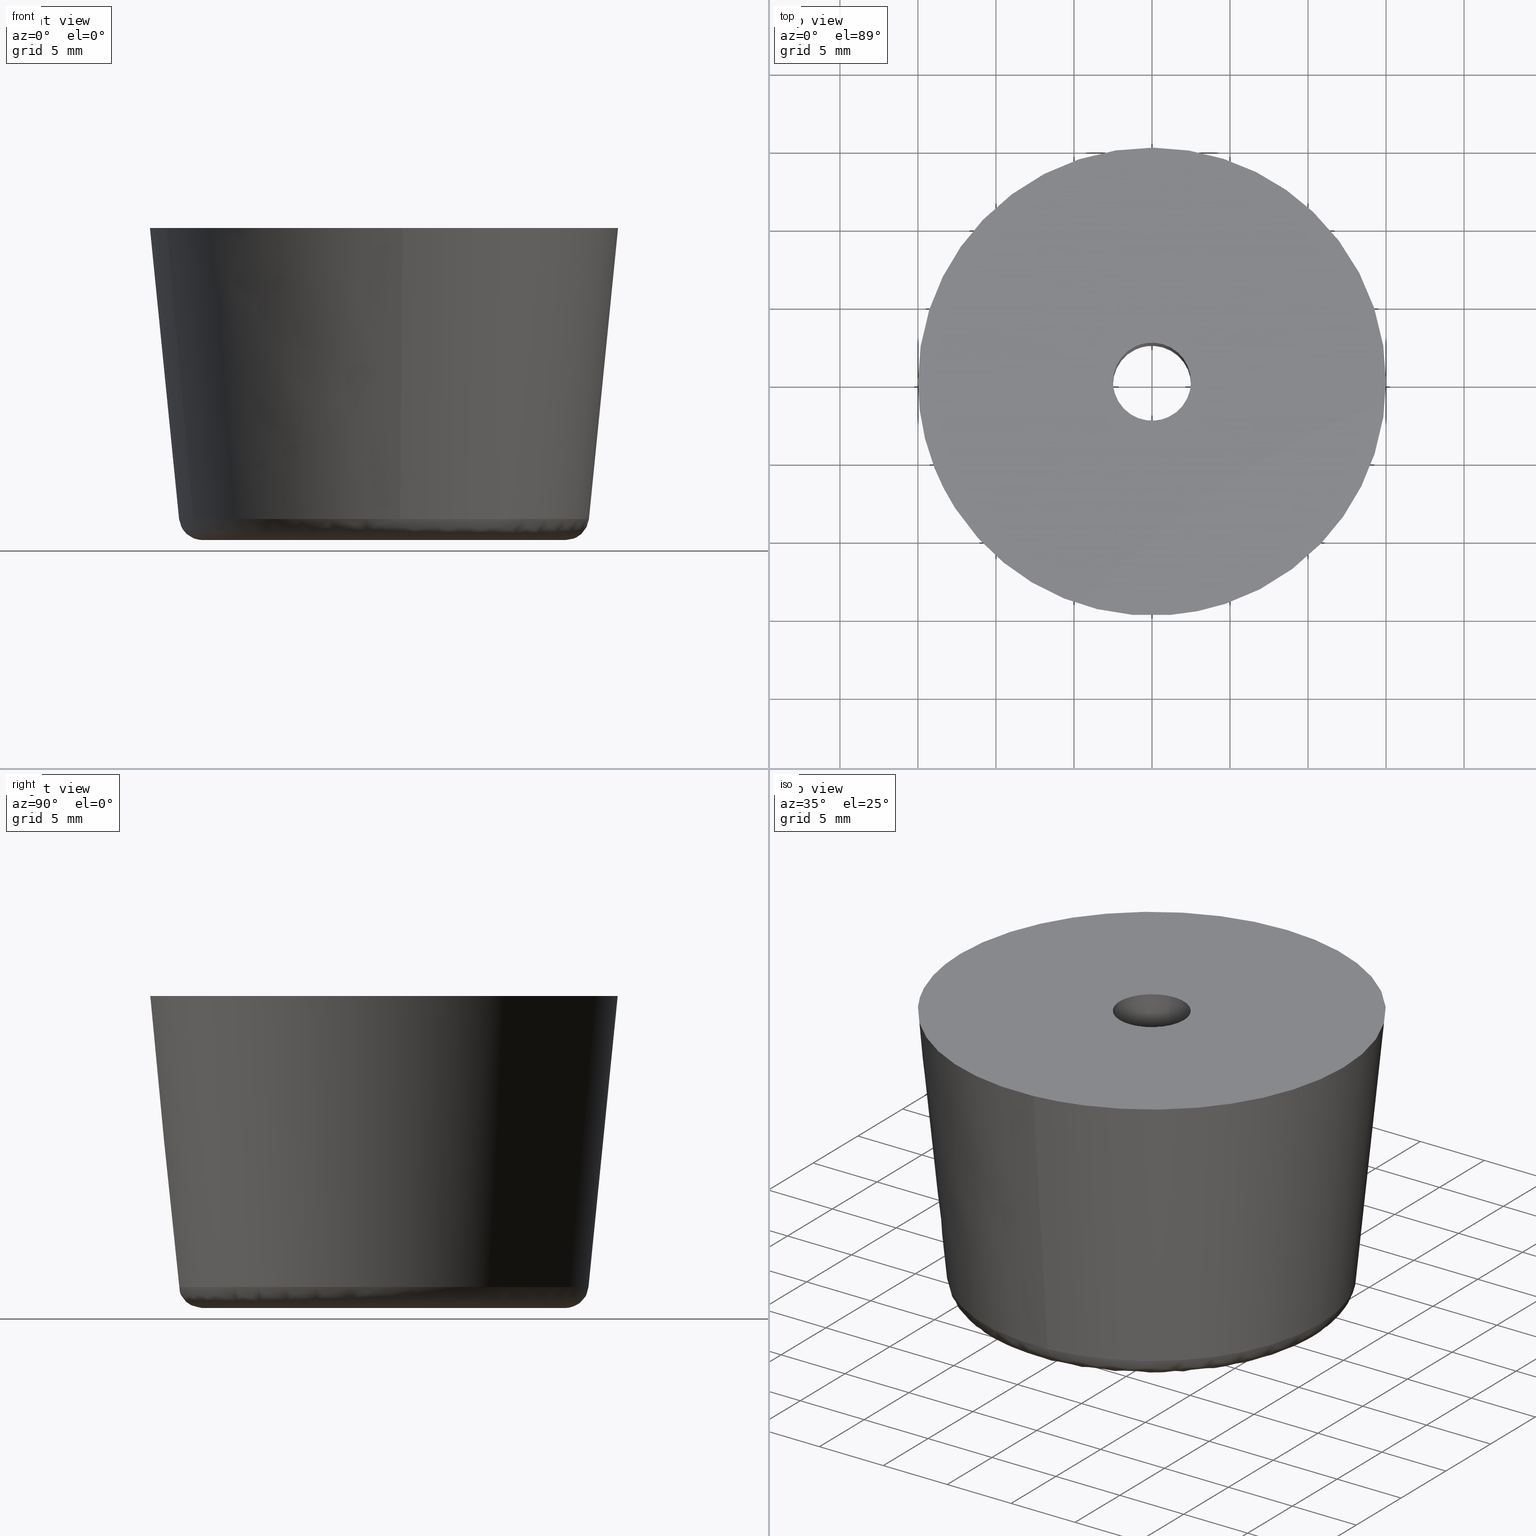
[diagram: canonical four-view strip — front | top / right | iso, engineering-drawing reading convention]
A machine part, canonical four-view strip (front | top / right | iso — engineering-drawing reading convention). The complete STEP part file that produces these views, byte-faithful:
ISO-10303-21;
HEADER;
/****************************************************************
 * Generated by software with PDE/Lib inside                    *
 * PDElib Version 4.4.1-0003, patched  Thursday August 19 11:58 *
 * International Technegroup Inc. (www.iti-oh.com)              *
 ****************************************************************/
FILE_DESCRIPTION((''),'2;1');
FILE_NAME('','2005-12-14T14:11:03',(''),(''),'','CADfix','');
FILE_SCHEMA(('AUTOMOTIVE_DESIGN'));
ENDSEC;
DATA;
#5=APPLICATION_CONTEXT('automotive design');
#6=APPLICATION_PROTOCOL_DEFINITION('Draft International Standard','automotive_design',1998,#5);
#7=PRODUCT_CONTEXT('None',#5,'mechanical');
#8=PRODUCT('rubber foot','','None',(#7));
#9=PRODUCT_RELATED_PRODUCT_CATEGORY('part','description',(#8));
#10=PRODUCT_DEFINITION_FORMATION('None','None',#8);
#11=PRODUCT_DEFINITION_CONTEXT('part definition',#5,'design');
#12=PRODUCT_DEFINITION('None','None',#10,#11);
#18=(NAMED_UNIT(*)PLANE_ANGLE_UNIT()SI_UNIT($,.RADIAN.));
#19=DIMENSIONAL_EXPONENTS(0.0,0.0,0.0,0.0,0.0,0.0,0.0);
#20=PLANE_ANGLE_MEASURE_WITH_UNIT(PLANE_ANGLE_MEASURE(0.017453292500000),#18);
#24=(CONVERSION_BASED_UNIT('DEGREE',#20)NAMED_UNIT(#19)PLANE_ANGLE_UNIT());
#28=(NAMED_UNIT(*)SI_UNIT($,.STERADIAN.)SOLID_ANGLE_UNIT());
#32=(LENGTH_UNIT()NAMED_UNIT(*)SI_UNIT(.MILLI.,.METRE.));
#34=UNCERTAINTY_MEASURE_WITH_UNIT(LENGTH_MEASURE(0.001000000000000),#32,'DISTANCE_ACCURACY_VALUE','');
#36=(GEOMETRIC_REPRESENTATION_CONTEXT(3)GLOBAL_UNCERTAINTY_ASSIGNED_CONTEXT((#34))GLOBAL_UNIT_ASSIGNED_CONTEXT((#24,#28,#32))REPRESENTATION_CONTEXT('None','None'));
#37=AXIS2_PLACEMENT_3D('',#38,#39,#40);
#38=CARTESIAN_POINT('',(0.0,0.0,0.0));
#39=DIRECTION('',(0.0,0.0,1.0));
#40=DIRECTION('',(1.0,0.0,0.0));
#41=ADVANCED_BREP_SHAPE_REPRESENTATION('',(#37,#841),#36);
#42=PRODUCT_DEFINITION_SHAPE('','',#12);
#43=SHAPE_DEFINITION_REPRESENTATION(#42,#41);
#44=CARTESIAN_POINT('',(-12.170484751415133,-4.815272209996599,0.884513582186998));
#45=CARTESIAN_POINT('',(-8.612980301674860,-13.806779184154966,0.884513582186998));
#46=CARTESIAN_POINT('',(1.026908017833442,-13.048103519810960,0.884513582186998));
#47=CARTESIAN_POINT('',(-13.992403335263864,-5.536117279430917,20.477887160445327));
#48=CARTESIAN_POINT('',(-9.902341341474021,-15.873650643468268,20.477887160445327));
#49=CARTESIAN_POINT('',(1.180635896369789,-15.001401418151570,20.477887160445331));
#57=(BOUNDED_SURFACE()B_SPLINE_SURFACE(2,1,((#44,#47),(#45,#48),(#46,#49)),.UNSPECIFIED.,.F.,.F.,.U.)B_SPLINE_SURFACE_WITH_KNOTS((3,3),(2,2),(0.0,19.809642269419701),(0.0,19.691096798235819),.UNSPECIFIED.)GEOMETRIC_REPRESENTATION_ITEM()RATIONAL_B_SPLINE_SURFACE(((0.906274169979695,0.906274169979695),(0.765685424949238,0.765685424949238),(1.0,1.0)))REPRESENTATION_ITEM('')SURFACE());
#58=CARTESIAN_POINT('',(1.030555621959290,-13.094583491800741,1.350742231963600));
#59=VERTEX_POINT('',#58);
#60=CARTESIAN_POINT('',(-12.213839723886680,-4.832419833118689,1.350742433918875));
#61=VERTEX_POINT('',#60);
#62=CARTESIAN_POINT('',(1.030555621959290,-13.094583491800739,1.350742231963600));
#63=CARTESIAN_POINT('',(0.516073231781699,-13.135073728872834,1.350742237333666));
#64=CARTESIAN_POINT('',(-7.493435E-009,-13.135073733965189,1.350742242998451));
#65=CARTESIAN_POINT('',(-8.928885143544781,-13.135073822070973,1.350742341008227));
#66=CARTESIAN_POINT('',(-12.213839723886680,-4.832419833118689,1.350742433918874));
#74=(BOUNDED_CURVE()B_SPLINE_CURVE(2,(#62,#63,#64,#65,#66),.UNSPECIFIED.,.F.,.U.)B_SPLINE_CURVE_WITH_KNOTS((3,2,3),(0.736331436581265,0.750000000000000,0.937532615029448),.UNSPECIFIED.)CURVE()GEOMETRIC_REPRESENTATION_ITEM()RATIONAL_B_SPLINE_CURVE((0.969723639886132,0.983986281854923,1.0,0.780291875006084,0.890203263798775))REPRESENTATION_ITEM(''));
#75=EDGE_CURVE('',#59,#61,#74,.T.);
#76=ORIENTED_EDGE('',*,*,#75,.F.);
#77=CARTESIAN_POINT('',(1.176877817785791,-14.953760451905559,19.999997683682370));
#78=VERTEX_POINT('',#77);
#79=CARTESIAN_POINT('',(1.030555621959290,-13.094583491800741,1.350742231963600));
#80=CARTESIAN_POINT('',(1.176877817785791,-14.953760451905559,19.999997683682370));
#81=QUASI_UNIFORM_CURVE('',1,(#79,#80),.UNSPECIFIED.,.F.,.U.);
#82=EDGE_CURVE('',#59,#78,#81,.T.);
#83=ORIENTED_EDGE('',*,*,#82,.T.);
#84=CARTESIAN_POINT('',(-13.947968010895551,-5.518530671019443,19.999997466659359));
#85=VERTEX_POINT('',#84);
#86=CARTESIAN_POINT('',(1.176877817785791,-14.953760451905552,19.999997683682377));
#87=CARTESIAN_POINT('',(0.589347273754645,-14.999999772741710,19.999997677911637));
#88=CARTESIAN_POINT('',(-4.309222E-009,-14.999999776604669,19.999997671824179));
#89=CARTESIAN_POINT('',(-10.196613181655882,-14.999999843439703,19.999997566501975));
#90=CARTESIAN_POINT('',(-13.947968010895554,-5.518530671019443,19.999997466659359));
#98=(BOUNDED_CURVE()B_SPLINE_CURVE(2,(#86,#87,#88,#89,#90),.UNSPECIFIED.,.F.,.U.)B_SPLINE_CURVE_WITH_KNOTS((3,2,3),(0.736331399219582,0.750000000000000,0.937532605541042),.UNSPECIFIED.)CURVE()GEOMETRIC_REPRESENTATION_ITEM()RATIONAL_B_SPLINE_CURVE((0.969723561915069,0.983986238082989,1.0,0.780291886122443,0.890203252676616))REPRESENTATION_ITEM(''));
#99=EDGE_CURVE('',#78,#85,#98,.T.);
#100=ORIENTED_EDGE('',*,*,#99,.T.);
#101=CARTESIAN_POINT('',(-12.213839723886680,-4.832419833118689,1.350742433918875));
#102=CARTESIAN_POINT('',(-13.947968010895551,-5.518530671019443,19.999997466659359));
#103=QUASI_UNIFORM_CURVE('',1,(#101,#102),.UNSPECIFIED.,.F.,.U.);
#104=EDGE_CURVE('',#61,#85,#103,.T.);
#105=ORIENTED_EDGE('',*,*,#104,.F.);
#106=EDGE_LOOP('',(#76,#83,#100,#105));
#107=FACE_OUTER_BOUND('',#106,.T.);
#108=ADVANCED_FACE('',(#107),#57,.T.);
#109=CARTESIAN_POINT('',(1.026908017833442,-13.048103519810960,0.884513582186998));
#110=CARTESIAN_POINT('',(14.075011537644400,-12.021195501977516,0.884513582186999));
#111=CARTESIAN_POINT('',(13.048103519810960,1.026908017833442,0.884513582186998));
#112=CARTESIAN_POINT('',(12.021195501977516,14.075011537644400,0.884513582186999));
#113=CARTESIAN_POINT('',(-1.026908017833442,13.048103519810960,0.884513582186998));
#114=CARTESIAN_POINT('',(-14.075011537644400,12.021195501977516,0.884513582186999));
#115=CARTESIAN_POINT('',(-13.048103519810960,-1.026908017833442,0.884513582186998));
#116=CARTESIAN_POINT('',(-12.893840262821103,-2.987008544415640,0.884513582186998));
#117=CARTESIAN_POINT('',(-12.170484751415133,-4.815272209996599,0.884513582186998));
#118=CARTESIAN_POINT('',(1.180635896369789,-15.001401418151570,20.477887160445331));
#119=CARTESIAN_POINT('',(16.182037314521356,-13.820765521781778,20.477887160445334));
#120=CARTESIAN_POINT('',(15.001401418151570,1.180635896369789,20.477887160445331));
#121=CARTESIAN_POINT('',(13.820765521781778,16.182037314521356,20.477887160445334));
#122=CARTESIAN_POINT('',(-1.180635896369789,15.001401418151570,20.477887160445331));
#123=CARTESIAN_POINT('',(-16.182037314521356,13.820765521781778,20.477887160445334));
#124=CARTESIAN_POINT('',(-15.001401418151570,-1.180635896369789,20.477887160445331));
#125=CARTESIAN_POINT('',(-14.824044989405989,-3.434162991287858,20.477887160445327));
#126=CARTESIAN_POINT('',(-13.992403335263864,-5.536117279430917,20.477887160445327));
#134=(BOUNDED_SURFACE()B_SPLINE_SURFACE(2,1,((#109,#118),(#110,#119),(#111,#120),(#112,#121),(#113,#122),(#114,#123),(#115,#124),(#116,#125),(#117,#126)),.UNSPECIFIED.,.F.,.F.,.U.)B_SPLINE_SURFACE_WITH_KNOTS((3,2,2,2,3),(2,2),(0.0,24.931992700870310,49.863985401740621,74.795978102610931,79.782376642784996),(0.0,19.691096798235819),.UNSPECIFIED.)GEOMETRIC_REPRESENTATION_ITEM()RATIONAL_B_SPLINE_SURFACE(((1.0,1.0),(0.707106781186548,0.707106781186548),(1.0,1.0),(0.707106781186548,0.707106781186548),(1.0,1.0),(0.707106781186548,0.707106781186548),(1.0,1.0),(0.941421356237310,0.941421356237310),(0.906274169979695,0.906274169979695)))REPRESENTATION_ITEM('')SURFACE());
#135=CARTESIAN_POINT('',(-13.135073999999980,0.0,1.350745000000000));
#136=VERTEX_POINT('',#135);
#137=CARTESIAN_POINT('',(-12.213839723886680,-4.832419833118689,1.350742433918874));
#138=CARTESIAN_POINT('',(-13.135073880694025,-2.504020181869384,1.350743716959438));
#139=CARTESIAN_POINT('',(-13.135073999999980,0.0,1.350745000000000));
#147=(BOUNDED_CURVE()B_SPLINE_CURVE(2,(#137,#138,#139),.UNSPECIFIED.,.F.,.U.)B_SPLINE_CURVE_WITH_KNOTS((3,3),(0.937532615029448,1.0),.UNSPECIFIED.)CURVE()GEOMETRIC_REPRESENTATION_ITEM()RATIONAL_B_SPLINE_CURVE((0.890203263798775,0.926814906180464,1.0))REPRESENTATION_ITEM(''));
#148=EDGE_CURVE('',#61,#136,#147,.T.);
#149=ORIENTED_EDGE('',*,*,#148,.F.);
#150=ORIENTED_EDGE('',*,*,#104,.T.);
#151=CARTESIAN_POINT('',(-15.0,0.0,20.0));
#152=VERTEX_POINT('',#151);
#153=CARTESIAN_POINT('',(-13.947968010895554,-5.518530671019443,19.999997466659359));
#154=CARTESIAN_POINT('',(-14.999999882216349,-2.859543005213578,19.999998733329683));
#155=CARTESIAN_POINT('',(-15.0,0.0,20.0));
#163=(BOUNDED_CURVE()B_SPLINE_CURVE(2,(#153,#154,#155),.UNSPECIFIED.,.F.,.U.)B_SPLINE_CURVE_WITH_KNOTS((3,3),(0.937532605541042,1.0),.UNSPECIFIED.)CURVE()GEOMETRIC_REPRESENTATION_ITEM()RATIONAL_B_SPLINE_CURVE((0.890203252676616,0.926814895064105,1.0))REPRESENTATION_ITEM(''));
#164=EDGE_CURVE('',#85,#152,#163,.T.);
#165=ORIENTED_EDGE('',*,*,#164,.T.);
#166=CARTESIAN_POINT('',(15.0,0.0,20.0));
#167=VERTEX_POINT('',#166);
#168=CARTESIAN_POINT('',(-15.0,0.0,20.0));
#169=CARTESIAN_POINT('',(-14.999999999999996,14.999999999999996,20.0));
#170=CARTESIAN_POINT('',(0.0,15.0,20.0));
#171=CARTESIAN_POINT('',(14.999999999999996,14.999999999999996,20.0));
#172=CARTESIAN_POINT('',(15.0,0.0,20.0));
#180=(BOUNDED_CURVE()B_SPLINE_CURVE(2,(#168,#169,#170,#171,#172),.UNSPECIFIED.,.F.,.U.)B_SPLINE_CURVE_WITH_KNOTS((3,2,3),(0.0,0.250000000000000,0.500000000000000),.UNSPECIFIED.)CURVE()GEOMETRIC_REPRESENTATION_ITEM()RATIONAL_B_SPLINE_CURVE((1.0,0.707106781186547,1.0,0.707106781186547,1.0))REPRESENTATION_ITEM(''));
#181=EDGE_CURVE('',#152,#167,#180,.T.);
#182=ORIENTED_EDGE('',*,*,#181,.T.);
#183=CARTESIAN_POINT('',(15.0,0.0,20.0));
#184=CARTESIAN_POINT('',(14.999999990913157,-13.865865258374738,19.999998841841183));
#185=CARTESIAN_POINT('',(1.176877817785791,-14.953760451905552,19.999997683682377));
#193=(BOUNDED_CURVE()B_SPLINE_CURVE(2,(#183,#184,#185),.UNSPECIFIED.,.F.,.U.)B_SPLINE_CURVE_WITH_KNOTS((3,3),(0.500000000000000,0.736331399219582),.UNSPECIFIED.)CURVE()GEOMETRIC_REPRESENTATION_ITEM()RATIONAL_B_SPLINE_CURVE((1.0,0.723120543103558,0.969723561915069))REPRESENTATION_ITEM(''));
#194=EDGE_CURVE('',#167,#78,#193,.T.);
#195=ORIENTED_EDGE('',*,*,#194,.T.);
#196=ORIENTED_EDGE('',*,*,#82,.F.);
#197=CARTESIAN_POINT('',(13.135073999999980,0.0,1.350745000000000));
#198=VERTEX_POINT('',#197);
#199=CARTESIAN_POINT('',(13.135073999999980,0.0,1.350745000000000));
#200=CARTESIAN_POINT('',(13.135073989141043,-12.141947033812311,1.350743615981800));
#201=CARTESIAN_POINT('',(1.030555621959290,-13.094583491800739,1.350742231963600));
#209=(BOUNDED_CURVE()B_SPLINE_CURVE(2,(#199,#200,#201),.UNSPECIFIED.,.F.,.U.)B_SPLINE_CURVE_WITH_KNOTS((3,3),(0.500000000000000,0.736331436581265),.UNSPECIFIED.)CURVE()GEOMETRIC_REPRESENTATION_ITEM()RATIONAL_B_SPLINE_CURVE((1.0,0.723120499331624,0.969723639886132))REPRESENTATION_ITEM(''));
#210=EDGE_CURVE('',#198,#59,#209,.T.);
#211=ORIENTED_EDGE('',*,*,#210,.F.);
#212=CARTESIAN_POINT('',(0.989423196236340,13.097756360902920,1.350744958231219));
#213=VERTEX_POINT('',#212);
#214=CARTESIAN_POINT('',(0.989423196236340,13.097756360902922,1.350744958231218));
#215=CARTESIAN_POINT('',(13.135073999999980,12.180256157799978,1.350745000000000));
#216=CARTESIAN_POINT('',(13.135073999999980,0.0,1.350745000000000));
#224=(BOUNDED_CURVE()B_SPLINE_CURVE(2,(#214,#215,#216),.UNSPECIFIED.,.F.,.U.)B_SPLINE_CURVE_WITH_KNOTS((3,3),(0.263129840737689,0.500000000000000),.UNSPECIFIED.)CURVE()GEOMETRIC_REPRESENTATION_ITEM()RATIONAL_B_SPLINE_CURVE((0.970850634527140,0.722489346451227,1.0))REPRESENTATION_ITEM(''));
#225=EDGE_CURVE('',#213,#198,#224,.T.);
#226=ORIENTED_EDGE('',*,*,#225,.F.);
#227=CARTESIAN_POINT('',(-13.097756360903629,0.989423196243246,1.350744958243485));
#228=VERTEX_POINT('',#227);
#229=CARTESIAN_POINT('',(-13.097756360903636,0.989423196243246,1.350744958243485));
#230=CARTESIAN_POINT('',(-12.180256157787268,13.135073999999980,1.350745000000000));
#231=CARTESIAN_POINT('',(0.0,13.135073999999980,1.350745000000000));
#232=CARTESIAN_POINT('',(0.495415344601110,13.135073999999980,1.350745000000000));
#233=CARTESIAN_POINT('',(0.989423196236340,13.097756360902922,1.350744958231218));
#241=(BOUNDED_CURVE()B_SPLINE_CURVE(2,(#229,#230,#231,#232,#233),.UNSPECIFIED.,.F.,.U.)B_SPLINE_CURVE_WITH_KNOTS((3,2,3),(0.013129840737868,0.250000000000000,0.263129840737689),.UNSPECIFIED.)CURVE()GEOMETRIC_REPRESENTATION_ITEM()RATIONAL_B_SPLINE_CURVE((0.970850634526766,0.722489346451436,1.0,0.984617434735321,0.970850634527140))REPRESENTATION_ITEM(''));
#242=EDGE_CURVE('',#228,#213,#241,.T.);
#243=ORIENTED_EDGE('',*,*,#242,.F.);
#244=CARTESIAN_POINT('',(-13.135073999999980,0.0,1.350745000000000));
#245=CARTESIAN_POINT('',(-13.135073999999978,0.495415344607953,1.350745000000001));
#246=CARTESIAN_POINT('',(-13.097756360903636,0.989423196243246,1.350744958243485));
#254=(BOUNDED_CURVE()B_SPLINE_CURVE(2,(#244,#245,#246),.UNSPECIFIED.,.F.,.U.)B_SPLINE_CURVE_WITH_KNOTS((3,3),(0.0,0.013129840737868),.UNSPECIFIED.)CURVE()GEOMETRIC_REPRESENTATION_ITEM()RATIONAL_B_SPLINE_CURVE((1.0,0.984617434735112,0.970850634526766))REPRESENTATION_ITEM(''));
#255=EDGE_CURVE('',#136,#228,#254,.T.);
#256=ORIENTED_EDGE('',*,*,#255,.F.);
#257=EDGE_LOOP('',(#149,#150,#165,#182,#195,#196,#211,#226,#243,#256));
#258=FACE_OUTER_BOUND('',#257,.T.);
#259=ADVANCED_FACE('',(#258),#134,.T.);
#260=CARTESIAN_POINT('',(-0.295085586641896,2.482523815909166,20.300000000000008));
#261=CARTESIAN_POINT('',(-0.224036821594944,2.490969038621514,20.300000000000004));
#262=CARTESIAN_POINT('',(-0.152621348837143,2.495336996054667,20.300000000000001));
#263=CARTESIAN_POINT('',(2.342715647217524,2.647958344891809,20.300000000000008));
#264=CARTESIAN_POINT('',(2.495336996054667,0.152621348837143,20.300000000000001));
#265=CARTESIAN_POINT('',(2.647958344891809,-2.342715647217524,20.300000000000008));
#266=CARTESIAN_POINT('',(0.152621348837143,-2.495336996054667,20.300000000000001));
#267=CARTESIAN_POINT('',(-0.295085586641896,2.482523815909166,7.692500000000000));
#268=CARTESIAN_POINT('',(-0.224036821594944,2.490969038621514,7.692499999999999));
#269=CARTESIAN_POINT('',(-0.152621348837143,2.495336996054667,7.692499999999999));
#270=CARTESIAN_POINT('',(2.342715647217524,2.647958344891809,7.692499999999999));
#271=CARTESIAN_POINT('',(2.495336996054667,0.152621348837143,7.692499999999999));
#272=CARTESIAN_POINT('',(2.647958344891809,-2.342715647217524,7.692499999999999));
#273=CARTESIAN_POINT('',(0.152621348837143,-2.495336996054667,7.692499999999999));
#281=(BOUNDED_SURFACE()B_SPLINE_SURFACE(2,1,((#260,#267),(#261,#268),(#262,#269),(#263,#270),(#264,#271),(#265,#272),(#266,#273)),.UNSPECIFIED.,.F.,.F.,.U.)B_SPLINE_SURFACE_WITH_KNOTS((3,2,2,3),(2,2),(0.0,0.165685424949238,4.307821048680188,8.449956672411137),(0.0,12.607500000000011),.UNSPECIFIED.)GEOMETRIC_REPRESENTATION_ITEM()RATIONAL_B_SPLINE_SURFACE(((0.977505800795127,0.977505800795127),(0.988284271247462,0.988284271247462),(1.0,1.0),(0.707106781186548,0.707106781186548),(1.0,1.0),(0.707106781186548,0.707106781186548),(1.0,1.0)))REPRESENTATION_ITEM('')SURFACE());
#282=CARTESIAN_POINT('',(-0.295085586665474,2.482523815906363,20.0));
#283=VERTEX_POINT('',#282);
#284=CARTESIAN_POINT('',(2.500000000000000,0.0,20.0));
#285=VERTEX_POINT('',#284);
#286=CARTESIAN_POINT('',(-0.295085586665474,2.482523815906363,20.000000000000004));
#287=CARTESIAN_POINT('',(-0.148060299153603,2.500000000000000,20.000000000000004));
#288=CARTESIAN_POINT('',(0.0,2.500000000000000,20.0));
#289=CARTESIAN_POINT('',(2.500000000000000,2.500000000000000,19.999999999999996));
#290=CARTESIAN_POINT('',(2.500000000000000,0.0,20.0));
#298=(BOUNDED_CURVE()B_SPLINE_CURVE(2,(#286,#287,#288,#289,#290),.UNSPECIFIED.,.F.,.U.)B_SPLINE_CURVE_WITH_KNOTS((3,2,3),(0.229562473512434,0.250000000000000,0.500000000000000),.UNSPECIFIED.)CURVE()GEOMETRIC_REPRESENTATION_ITEM()RATIONAL_B_SPLINE_CURVE((0.956026754181593,0.976055948329886,1.0,0.707106781186548,1.0))REPRESENTATION_ITEM(''));
#299=EDGE_CURVE('',#283,#285,#298,.T.);
#300=ORIENTED_EDGE('',*,*,#299,.F.);
#301=CARTESIAN_POINT('',(-0.295085586665474,2.482523815906363,8.0));
#302=VERTEX_POINT('',#301);
#303=CARTESIAN_POINT('',(-0.295085586665474,2.482523815906363,20.0));
#304=CARTESIAN_POINT('',(-0.295085586665474,2.482523815906363,8.0));
#305=QUASI_UNIFORM_CURVE('',1,(#303,#304),.UNSPECIFIED.,.F.,.U.);
#306=EDGE_CURVE('',#283,#302,#305,.T.);
#307=ORIENTED_EDGE('',*,*,#306,.T.);
#308=CARTESIAN_POINT('',(2.500000000000000,0.0,8.0));
#309=VERTEX_POINT('',#308);
#310=CARTESIAN_POINT('',(-0.295085586665474,2.482523815906363,8.000000000000002));
#311=CARTESIAN_POINT('',(-0.148060299153603,2.500000000000000,8.0));
#312=CARTESIAN_POINT('',(0.0,2.500000000000000,8.0));
#313=CARTESIAN_POINT('',(2.500000000000000,2.500000000000000,8.0));
#314=CARTESIAN_POINT('',(2.500000000000000,0.0,8.0));
#322=(BOUNDED_CURVE()B_SPLINE_CURVE(2,(#310,#311,#312,#313,#314),.UNSPECIFIED.,.F.,.U.)B_SPLINE_CURVE_WITH_KNOTS((3,2,3),(0.229562473512434,0.250000000000000,0.500000000000000),.UNSPECIFIED.)CURVE()GEOMETRIC_REPRESENTATION_ITEM()RATIONAL_B_SPLINE_CURVE((0.956026754181593,0.976055948329886,1.0,0.707106781186548,1.0))REPRESENTATION_ITEM(''));
#323=EDGE_CURVE('',#302,#309,#322,.T.);
#324=ORIENTED_EDGE('',*,*,#323,.T.);
#325=CARTESIAN_POINT('',(0.152621348888177,-2.495336996051546,8.0));
#326=VERTEX_POINT('',#325);
#327=CARTESIAN_POINT('',(2.500000000000000,0.0,8.0));
#328=CARTESIAN_POINT('',(2.500000000000000,-2.351765167167861,8.0));
#329=CARTESIAN_POINT('',(0.152621348888177,-2.495336996051545,8.0));
#337=(BOUNDED_CURVE()B_SPLINE_CURVE(2,(#327,#328,#329),.UNSPECIFIED.,.F.,.U.)B_SPLINE_CURVE_WITH_KNOTS((3,3),(0.500000000000000,0.739332962234911),.UNSPECIFIED.)CURVE()GEOMETRIC_REPRESENTATION_ITEM()RATIONAL_B_SPLINE_CURVE((1.0,0.719603993291434,0.976072041658075))REPRESENTATION_ITEM(''));
#338=EDGE_CURVE('',#309,#326,#337,.T.);
#339=ORIENTED_EDGE('',*,*,#338,.T.);
#340=CARTESIAN_POINT('',(0.152621348888177,-2.495336996051545,20.0));
#341=VERTEX_POINT('',#340);
#342=CARTESIAN_POINT('',(0.152621348888177,-2.495336996051545,20.0));
#343=CARTESIAN_POINT('',(0.152621348888177,-2.495336996051546,8.0));
#344=QUASI_UNIFORM_CURVE('',1,(#342,#343),.UNSPECIFIED.,.F.,.U.);
#345=EDGE_CURVE('',#341,#326,#344,.T.);
#346=ORIENTED_EDGE('',*,*,#345,.F.);
#347=CARTESIAN_POINT('',(2.500000000000000,0.0,20.0));
#348=CARTESIAN_POINT('',(2.500000000000000,-2.351765167167861,20.0));
#349=CARTESIAN_POINT('',(0.152621348888177,-2.495336996051545,20.0));
#357=(BOUNDED_CURVE()B_SPLINE_CURVE(2,(#347,#348,#349),.UNSPECIFIED.,.F.,.U.)B_SPLINE_CURVE_WITH_KNOTS((3,3),(0.500000000000000,0.739332962234911),.UNSPECIFIED.)CURVE()GEOMETRIC_REPRESENTATION_ITEM()RATIONAL_B_SPLINE_CURVE((1.0,0.719603993291434,0.976072041658075))REPRESENTATION_ITEM(''));
#358=EDGE_CURVE('',#285,#341,#357,.T.);
#359=ORIENTED_EDGE('',*,*,#358,.F.);
#360=EDGE_LOOP('',(#300,#307,#324,#339,#346,#359));
#361=FACE_OUTER_BOUND('',#360,.T.);
#362=ADVANCED_FACE('',(#361),#281,.F.);
#363=CARTESIAN_POINT('',(0.152621348837143,-2.495336996054667,20.300000000000001));
#364=CARTESIAN_POINT('',(-2.342715647217524,-2.647958344891809,20.300000000000008));
#365=CARTESIAN_POINT('',(-2.495336996054667,-0.152621348837143,20.300000000000001));
#366=CARTESIAN_POINT('',(-2.639465491831319,2.203858727098751,20.300000000000001));
#367=CARTESIAN_POINT('',(-0.295085586641896,2.482523815909166,20.300000000000008));
#368=CARTESIAN_POINT('',(0.152621348837143,-2.495336996054667,7.692499999999999));
#369=CARTESIAN_POINT('',(-2.342715647217524,-2.647958344891809,7.692499999999999));
#370=CARTESIAN_POINT('',(-2.495336996054667,-0.152621348837143,7.692499999999999));
#371=CARTESIAN_POINT('',(-2.639465491831319,2.203858727098751,7.692499999999999));
#372=CARTESIAN_POINT('',(-0.295085586641896,2.482523815909166,7.692500000000000));
#380=(BOUNDED_SURFACE()B_SPLINE_SURFACE(2,1,((#363,#368),(#364,#369),(#365,#370),(#366,#371),(#367,#372)),.UNSPECIFIED.,.F.,.F.,.U.)B_SPLINE_SURFACE_WITH_KNOTS((3,2,3),(2,2),(0.0,4.142135623730949,8.118585822512660),(0.0,12.607500000000011),.UNSPECIFIED.)GEOMETRIC_REPRESENTATION_ITEM()RATIONAL_B_SPLINE_SURFACE(((1.0,1.0),(0.707106781186548,0.707106781186548),(1.0,1.0),(0.718822509939086,0.718822509939086),(0.977505800795127,0.977505800795127)))REPRESENTATION_ITEM('')SURFACE());
#381=CARTESIAN_POINT('',(-2.500000000000000,0.0,20.0));
#382=VERTEX_POINT('',#381);
#383=CARTESIAN_POINT('',(-2.500000000000000,0.0,20.0));
#384=CARTESIAN_POINT('',(-2.500000000000000,2.220436314835945,19.999999999999996));
#385=CARTESIAN_POINT('',(-0.295085586665474,2.482523815906363,19.999999999999996));
#393=(BOUNDED_CURVE()B_SPLINE_CURVE(2,(#383,#384,#385),.UNSPECIFIED.,.F.,.U.)B_SPLINE_CURVE_WITH_KNOTS((3,3),(0.0,0.229562473512434),.UNSPECIFIED.)CURVE()GEOMETRIC_REPRESENTATION_ITEM()RATIONAL_B_SPLINE_CURVE((1.0,0.731050832856661,0.956026754181594))REPRESENTATION_ITEM(''));
#394=EDGE_CURVE('',#382,#283,#393,.T.);
#395=ORIENTED_EDGE('',*,*,#394,.F.);
#396=CARTESIAN_POINT('',(0.152621348888177,-2.495336996051545,20.0));
#397=CARTESIAN_POINT('',(0.076381908297649,-2.500000000000000,19.999999999999996));
#398=CARTESIAN_POINT('',(0.0,-2.500000000000000,20.0));
#399=CARTESIAN_POINT('',(-2.500000000000000,-2.500000000000000,19.999999999999996));
#400=CARTESIAN_POINT('',(-2.500000000000000,0.0,20.0));
#408=(BOUNDED_CURVE()B_SPLINE_CURVE(2,(#396,#397,#398,#399,#400),.UNSPECIFIED.,.F.,.U.)B_SPLINE_CURVE_WITH_KNOTS((3,2,3),(0.739332962234911,0.750000000000000,1.0),.UNSPECIFIED.)CURVE()GEOMETRIC_REPRESENTATION_ITEM()RATIONAL_B_SPLINE_CURVE((0.976072041658075,0.987502787895113,1.0,0.707106781186548,1.0))REPRESENTATION_ITEM(''));
#409=EDGE_CURVE('',#341,#382,#408,.T.);
#410=ORIENTED_EDGE('',*,*,#409,.F.);
#411=ORIENTED_EDGE('',*,*,#345,.T.);
#412=CARTESIAN_POINT('',(-2.500000000000000,0.0,8.0));
#413=VERTEX_POINT('',#412);
#414=CARTESIAN_POINT('',(0.152621348888177,-2.495336996051546,8.0));
#415=CARTESIAN_POINT('',(0.076381908297650,-2.500000000000000,8.0));
#416=CARTESIAN_POINT('',(0.0,-2.500000000000000,8.0));
#417=CARTESIAN_POINT('',(-2.500000000000000,-2.500000000000000,8.0));
#418=CARTESIAN_POINT('',(-2.500000000000000,0.0,8.0));
#426=(BOUNDED_CURVE()B_SPLINE_CURVE(2,(#414,#415,#416,#417,#418),.UNSPECIFIED.,.F.,.U.)B_SPLINE_CURVE_WITH_KNOTS((3,2,3),(0.739332962234910,0.750000000000000,1.0),.UNSPECIFIED.)CURVE()GEOMETRIC_REPRESENTATION_ITEM()RATIONAL_B_SPLINE_CURVE((0.976072041658075,0.987502787895113,1.0,0.707106781186548,1.0))REPRESENTATION_ITEM(''));
#427=EDGE_CURVE('',#326,#413,#426,.T.);
#428=ORIENTED_EDGE('',*,*,#427,.T.);
#429=CARTESIAN_POINT('',(-2.500000000000000,0.0,8.0));
#430=CARTESIAN_POINT('',(-2.500000000000000,2.220436314835945,8.0));
#431=CARTESIAN_POINT('',(-0.295085586665474,2.482523815906363,8.0));
#439=(BOUNDED_CURVE()B_SPLINE_CURVE(2,(#429,#430,#431),.UNSPECIFIED.,.F.,.U.)B_SPLINE_CURVE_WITH_KNOTS((3,3),(0.0,0.229562473512434),.UNSPECIFIED.)CURVE()GEOMETRIC_REPRESENTATION_ITEM()RATIONAL_B_SPLINE_CURVE((1.0,0.731050832856661,0.956026754181594))REPRESENTATION_ITEM(''));
#440=EDGE_CURVE('',#413,#302,#439,.T.);
#441=ORIENTED_EDGE('',*,*,#440,.T.);
#442=ORIENTED_EDGE('',*,*,#306,.F.);
#443=EDGE_LOOP('',(#395,#410,#411,#428,#441,#442));
#444=FACE_OUTER_BOUND('',#443,.T.);
#445=ADVANCED_FACE('',(#444),#380,.F.);
#446=CARTESIAN_POINT('',(-0.708205407940551,5.958057158181998,8.200000000000001));
#447=CARTESIAN_POINT('',(-0.537688371827866,5.978325692691634,8.199999999999999));
#448=CARTESIAN_POINT('',(-0.366291237209142,5.988808790531200,8.199999999999999));
#449=CARTESIAN_POINT('',(5.622517553322059,6.355100027740342,8.199999999999999));
#450=CARTESIAN_POINT('',(5.988808790531200,0.366291237209142,8.199999999999999));
#451=CARTESIAN_POINT('',(6.355100027740342,-5.622517553322059,8.199999999999999));
#452=CARTESIAN_POINT('',(0.366291237209142,-5.988808790531200,8.199999999999999));
#453=CARTESIAN_POINT('',(-0.708205407940551,5.958057158181998,-0.205000000000000));
#454=CARTESIAN_POINT('',(-0.537688371827866,5.978325692691634,-0.205000000000000));
#455=CARTESIAN_POINT('',(-0.366291237209142,5.988808790531200,-0.205000000000000));
#456=CARTESIAN_POINT('',(5.622517553322059,6.355100027740342,-0.205000000000000));
#457=CARTESIAN_POINT('',(5.988808790531200,0.366291237209142,-0.205000000000000));
#458=CARTESIAN_POINT('',(6.355100027740342,-5.622517553322059,-0.205000000000000));
#459=CARTESIAN_POINT('',(0.366291237209142,-5.988808790531200,-0.205000000000000));
#467=(BOUNDED_SURFACE()B_SPLINE_SURFACE(2,1,((#446,#453),(#447,#454),(#448,#455),(#449,#456),(#450,#457),(#451,#458),(#452,#459)),.UNSPECIFIED.,.F.,.F.,.U.)B_SPLINE_SURFACE_WITH_KNOTS((3,2,2,3),(2,2),(0.0,0.397645019878172,10.338770516832451,20.279896013786729),(0.0,8.404999999999999),.UNSPECIFIED.)GEOMETRIC_REPRESENTATION_ITEM()RATIONAL_B_SPLINE_SURFACE(((0.977505800795127,0.977505800795127),(0.988284271247462,0.988284271247462),(1.0,1.0),(0.707106781186548,0.707106781186548),(1.0,1.0),(0.707106781186548,0.707106781186548),(1.0,1.0)))REPRESENTATION_ITEM('')SURFACE());
#468=CARTESIAN_POINT('',(-0.708194922177014,5.958058404555227,1.448108E-015));
#469=VERTEX_POINT('',#468);
#470=CARTESIAN_POINT('',(6.0,0.0,0.0));
#471=VERTEX_POINT('',#470);
#472=CARTESIAN_POINT('',(-0.708194922177014,5.958058404555227,1.448108E-015));
#473=CARTESIAN_POINT('',(-0.355339419604000,6.000000000000001,0.0));
#474=CARTESIAN_POINT('',(0.0,6.0,0.0));
#475=CARTESIAN_POINT('',(6.0,6.0,0.0));
#476=CARTESIAN_POINT('',(6.0,0.0,0.0));
#484=(BOUNDED_CURVE()B_SPLINE_CURVE(2,(#472,#473,#474,#475,#476),.UNSPECIFIED.,.F.,.U.)B_SPLINE_CURVE_WITH_KNOTS((3,2,3),(0.229562770949563,0.250000000000000,0.500000000000000),.UNSPECIFIED.)CURVE()GEOMETRIC_REPRESENTATION_ITEM()RATIONAL_B_SPLINE_CURVE((0.956027337171368,0.976056296799159,1.0,0.707106781186548,1.0))REPRESENTATION_ITEM(''));
#485=EDGE_CURVE('',#469,#471,#484,.T.);
#486=ORIENTED_EDGE('',*,*,#485,.T.);
#487=CARTESIAN_POINT('',(0.366289338826585,-5.988808906640648,3.788636E-015));
#488=VERTEX_POINT('',#487);
#489=CARTESIAN_POINT('',(6.0,0.0,0.0));
#490=CARTESIAN_POINT('',(6.000000000000001,-5.644238193934905,0.0));
#491=CARTESIAN_POINT('',(0.366289338826585,-5.988808906640647,3.788636E-015));
#499=(BOUNDED_CURVE()B_SPLINE_CURVE(2,(#489,#490,#491),.UNSPECIFIED.,.F.,.U.)B_SPLINE_CURVE_WITH_KNOTS((3,3),(0.500000000000000,0.739333016937291),.UNSPECIFIED.)CURVE()GEOMETRIC_REPRESENTATION_ITEM()RATIONAL_B_SPLINE_CURVE((1.0,0.719603929203609,0.976072158895718))REPRESENTATION_ITEM(''));
#500=EDGE_CURVE('',#471,#488,#499,.T.);
#501=ORIENTED_EDGE('',*,*,#500,.T.);
#502=CARTESIAN_POINT('',(0.366289362214313,-5.988808905210208,8.0));
#503=VERTEX_POINT('',#502);
#504=CARTESIAN_POINT('',(0.366289362214313,-5.988808905210208,8.0));
#505=CARTESIAN_POINT('',(0.366289338826585,-5.988808906640648,3.788636E-015));
#506=QUASI_UNIFORM_CURVE('',1,(#504,#505),.UNSPECIFIED.,.F.,.U.);
#507=EDGE_CURVE('',#503,#488,#506,.T.);
#508=ORIENTED_EDGE('',*,*,#507,.F.);
#509=CARTESIAN_POINT('',(6.0,0.0,8.0));
#510=VERTEX_POINT('',#509);
#511=CARTESIAN_POINT('',(6.0,0.0,8.0));
#512=CARTESIAN_POINT('',(5.999999999999999,-5.644238171851620,8.0));
#513=CARTESIAN_POINT('',(0.366289362214313,-5.988808905210209,8.0));
#521=(BOUNDED_CURVE()B_SPLINE_CURVE(2,(#511,#512,#513),.UNSPECIFIED.,.F.,.U.)B_SPLINE_CURVE_WITH_KNOTS((3,3),(0.500000000000000,0.739333016263455),.UNSPECIFIED.)CURVE()GEOMETRIC_REPRESENTATION_ITEM()RATIONAL_B_SPLINE_CURVE((1.0,0.719603929993058,0.976072157451558))REPRESENTATION_ITEM(''));
#522=EDGE_CURVE('',#510,#503,#521,.T.);
#523=ORIENTED_EDGE('',*,*,#522,.F.);
#524=CARTESIAN_POINT('',(-0.708195051552524,5.958058389177445,8.0));
#525=VERTEX_POINT('',#524);
#526=CARTESIAN_POINT('',(-0.708195051552524,5.958058389177445,8.000000000000002));
#527=CARTESIAN_POINT('',(-0.355339484975592,5.999999999999999,8.0));
#528=CARTESIAN_POINT('',(0.0,6.0,8.0));
#529=CARTESIAN_POINT('',(6.0,6.0,8.0));
#530=CARTESIAN_POINT('',(6.0,0.0,8.0));
#538=(BOUNDED_CURVE()B_SPLINE_CURVE(2,(#526,#527,#528,#529,#530),.UNSPECIFIED.,.F.,.U.)B_SPLINE_CURVE_WITH_KNOTS((3,2,3),(0.229562767279762,0.250000000000000,0.500000000000000),.UNSPECIFIED.)CURVE()GEOMETRIC_REPRESENTATION_ITEM()RATIONAL_B_SPLINE_CURVE((0.956027329978387,0.976056292499719,1.0,0.707106781186548,1.0))REPRESENTATION_ITEM(''));
#539=EDGE_CURVE('',#525,#510,#538,.T.);
#540=ORIENTED_EDGE('',*,*,#539,.F.);
#541=CARTESIAN_POINT('',(-0.708195051552524,5.958058389177445,8.0));
#542=CARTESIAN_POINT('',(-0.708194922177014,5.958058404555227,1.448108E-015));
#543=QUASI_UNIFORM_CURVE('',1,(#541,#542),.UNSPECIFIED.,.F.,.U.);
#544=EDGE_CURVE('',#525,#469,#543,.T.);
#545=ORIENTED_EDGE('',*,*,#544,.T.);
#546=EDGE_LOOP('',(#486,#501,#508,#523,#540,#545));
#547=FACE_OUTER_BOUND('',#546,.T.);
#548=ADVANCED_FACE('',(#547),#467,.F.);
#549=CARTESIAN_POINT('',(0.448816315883788,-5.983761340491331,8.199999999999996));
#550=CARTESIAN_POINT('',(0.407671873033278,-5.986277842420705,8.200000000000001));
#551=CARTESIAN_POINT('',(-5.622517553322059,-6.355100027740342,8.199999999999999));
#552=CARTESIAN_POINT('',(-5.988808790531200,-0.366291237209142,8.199999999999999));
#553=CARTESIAN_POINT('',(-6.334717180395164,5.289260945037006,8.199999999999999));
#554=CARTESIAN_POINT('',(-0.666076644850181,5.963064800280476,8.200000000000001));
#555=CARTESIAN_POINT('',(-0.624174307728721,5.968045528220290,8.200000000000001));
#556=CARTESIAN_POINT('',(0.448816315883788,-5.983761340491331,-0.205000000000000));
#557=CARTESIAN_POINT('',(0.407671873033278,-5.986277842420705,-0.205000000000000));
#558=CARTESIAN_POINT('',(-5.622517553322059,-6.355100027740342,-0.205000000000000));
#559=CARTESIAN_POINT('',(-5.988808790531200,-0.366291237209142,-0.205000000000000));
#560=CARTESIAN_POINT('',(-6.334717180395164,5.289260945037006,-0.205000000000000));
#561=CARTESIAN_POINT('',(-0.666076644850181,5.963064800280476,-0.205000000000000));
#562=CARTESIAN_POINT('',(-0.624174307728721,5.968045528220290,-0.205000000000000));
#570=(BOUNDED_SURFACE()B_SPLINE_SURFACE(2,1,((#549,#556),(#550,#557),(#551,#558),(#552,#559),(#553,#560),(#554,#561),(#555,#562)),.UNSPECIFIED.,.F.,.F.,.U.)B_SPLINE_SURFACE_WITH_KNOTS((3,1,2,1,3),(2,2),(0.0,0.097420876355919,10.038546373310201,19.582026850386310,19.679462020572409),(0.0,8.405000000000001),.UNSPECIFIED.)GEOMETRIC_REPRESENTATION_ITEM()RATIONAL_B_SPLINE_SURFACE(((1.005740580191701,1.005740580191701),(1.002870290095850,1.002870290095850),(0.707106781186548,0.707106781186548),(1.0,1.0),(0.718822509939086,0.718822509939086),(0.980146855128439,0.980146855128439),(0.982787909461751,0.982787909461751)))REPRESENTATION_ITEM('')SURFACE());
#571=CARTESIAN_POINT('',(-6.0,0.0,0.0));
#572=VERTEX_POINT('',#571);
#573=CARTESIAN_POINT('',(-6.0,0.0,0.0));
#574=CARTESIAN_POINT('',(-6.000000000000002,5.329056600487015,0.0));
#575=CARTESIAN_POINT('',(-0.708194922177014,5.958058404555227,1.448108E-015));
#583=(BOUNDED_CURVE()B_SPLINE_CURVE(2,(#573,#574,#575),.UNSPECIFIED.,.F.,.U.)B_SPLINE_CURVE_WITH_KNOTS((3,3),(0.0,0.229562770949563),.UNSPECIFIED.)CURVE()GEOMETRIC_REPRESENTATION_ITEM()RATIONAL_B_SPLINE_CURVE((1.0,0.731050484387389,0.956027337171368))REPRESENTATION_ITEM(''));
#584=EDGE_CURVE('',#572,#469,#583,.T.);
#585=ORIENTED_EDGE('',*,*,#584,.T.);
#586=ORIENTED_EDGE('',*,*,#544,.F.);
#587=CARTESIAN_POINT('',(-6.0,0.0,8.0));
#588=VERTEX_POINT('',#587);
#589=CARTESIAN_POINT('',(-6.0,0.0,8.0));
#590=CARTESIAN_POINT('',(-6.000000000000001,5.329056483955323,8.0));
#591=CARTESIAN_POINT('',(-0.708195051552524,5.958058389177445,8.000000000000002));
#599=(BOUNDED_CURVE()B_SPLINE_CURVE(2,(#589,#590,#591),.UNSPECIFIED.,.F.,.U.)B_SPLINE_CURVE_WITH_KNOTS((3,3),(0.0,0.229562767279762),.UNSPECIFIED.)CURVE()GEOMETRIC_REPRESENTATION_ITEM()RATIONAL_B_SPLINE_CURVE((1.0,0.731050488686828,0.956027329978387))REPRESENTATION_ITEM(''));
#600=EDGE_CURVE('',#588,#525,#599,.T.);
#601=ORIENTED_EDGE('',*,*,#600,.F.);
#602=CARTESIAN_POINT('',(0.366289362214313,-5.988808905210209,8.0));
#603=CARTESIAN_POINT('',(0.183315639665489,-6.0,8.0));
#604=CARTESIAN_POINT('',(0.0,-6.0,8.0));
#605=CARTESIAN_POINT('',(-6.0,-6.0,8.0));
#606=CARTESIAN_POINT('',(-6.0,0.0,8.0));
#614=(BOUNDED_CURVE()B_SPLINE_CURVE(2,(#602,#603,#604,#605,#606),.UNSPECIFIED.,.F.,.U.)B_SPLINE_CURVE_WITH_KNOTS((3,2,3),(0.739333016263455,0.750000000000000,1.0),.UNSPECIFIED.)CURVE()GEOMETRIC_REPRESENTATION_ITEM()RATIONAL_B_SPLINE_CURVE((0.976072157451558,0.987502851193490,1.0,0.707106781186548,1.0))REPRESENTATION_ITEM(''));
#615=EDGE_CURVE('',#503,#588,#614,.T.);
#616=ORIENTED_EDGE('',*,*,#615,.F.);
#617=ORIENTED_EDGE('',*,*,#507,.T.);
#618=CARTESIAN_POINT('',(0.366289338826585,-5.988808906640647,3.788636E-015));
#619=CARTESIAN_POINT('',(0.183315627938838,-6.0,0.0));
#620=CARTESIAN_POINT('',(0.0,-6.0,0.0));
#621=CARTESIAN_POINT('',(-6.0,-6.0,0.0));
#622=CARTESIAN_POINT('',(-6.0,0.0,0.0));
#630=(BOUNDED_CURVE()B_SPLINE_CURVE(2,(#618,#619,#620,#621,#622),.UNSPECIFIED.,.F.,.U.)B_SPLINE_CURVE_WITH_KNOTS((3,2,3),(0.739333016937291,0.750000000000000,1.0),.UNSPECIFIED.)CURVE()GEOMETRIC_REPRESENTATION_ITEM()RATIONAL_B_SPLINE_CURVE((0.976072158895718,0.987502851982938,1.0,0.707106781186548,1.0))REPRESENTATION_ITEM(''));
#631=EDGE_CURVE('',#488,#572,#630,.T.);
#632=ORIENTED_EDGE('',*,*,#631,.T.);
#633=EDGE_LOOP('',(#585,#586,#601,#616,#617,#632));
#634=FACE_OUTER_BOUND('',#633,.T.);
#635=ADVANCED_FACE('',(#634),#570,.F.);
#636=CARTESIAN_POINT('',(0.989921109811301,13.104347626133709,1.449970846079858));
#637=CARTESIAN_POINT('',(14.094268735945009,12.114426516322411,1.449970846079858));
#638=CARTESIAN_POINT('',(13.104347626133709,-0.989921109811300,1.449970846079858));
#639=CARTESIAN_POINT('',(12.114426516322411,-14.094268735945008,1.449970846079858));
#640=CARTESIAN_POINT('',(-0.989921109811300,-13.104347626133709,1.449970846079858));
#641=CARTESIAN_POINT('',(-14.094268735945008,-12.114426516322419,1.449970846079858));
#642=CARTESIAN_POINT('',(-13.104347626133709,0.989921109811304,1.449970846079858));
#643=CARTESIAN_POINT('',(0.986027509868629,13.052805046972439,-0.098946298262863));
#644=CARTESIAN_POINT('',(14.038832556841070,12.066777537103812,-0.098946298262863));
#645=CARTESIAN_POINT('',(13.052805046972439,-0.986027509868629,-0.098946298262863));
#646=CARTESIAN_POINT('',(12.066777537103812,-14.038832556841067,-0.098946298262863));
#647=CARTESIAN_POINT('',(-0.986027509868628,-13.052805046972439,-0.098946298262863));
#648=CARTESIAN_POINT('',(-14.038832556841063,-12.066777537103818,-0.098946298262863));
#649=CARTESIAN_POINT('',(-13.052805046972439,0.986027509868633,-0.098946298262863));
#650=CARTESIAN_POINT('',(0.869541752280144,11.510793420183274,0.003265876902326));
#651=CARTESIAN_POINT('',(12.380335172463425,10.641251667903138,0.003265876902326));
#652=CARTESIAN_POINT('',(11.510793420183274,-0.869541752280144,0.003265876902326));
#653=CARTESIAN_POINT('',(10.641251667903138,-12.380335172463425,0.003265876902326));
#654=CARTESIAN_POINT('',(-0.869541752280143,-11.510793420183274,0.003265876902326));
#655=CARTESIAN_POINT('',(-12.380335172463420,-10.641251667903143,0.003265876902326));
#656=CARTESIAN_POINT('',(-11.510793420183274,0.869541752280147,0.003265876902326));
#664=(BOUNDED_SURFACE()B_SPLINE_SURFACE(2,2,((#636,#643,#650),(#637,#644,#651),(#638,#645,#652),(#639,#646,#653),(#640,#647,#654),(#641,#648,#655),(#642,#649,#656)),.UNSPECIFIED.,.F.,.F.,.U.)B_SPLINE_SURFACE_WITH_KNOTS((3,2,2,3),(3,3),(0.0,21.773855747073469,43.547711494146931,65.321567241220393),(0.0,2.542835993604339),.UNSPECIFIED.)GEOMETRIC_REPRESENTATION_ITEM()RATIONAL_B_SPLINE_SURFACE(((0.912663329619786,0.636266793014406,0.917081506130559),(0.645350429314444,0.449908563984304,0.648474551885690),(0.912663329619786,0.636266793014406,0.917081506130559),(0.645350429314444,0.449908563984304,0.648474551885690),(0.912663329619786,0.636266793014406,0.917081506130559),(0.645350429314444,0.449908563984304,0.648474551885690),(0.912663329619786,0.636266793014406,0.917081506130559)))REPRESENTATION_ITEM('')SURFACE());
#665=CARTESIAN_POINT('',(0.876993764689428,11.609441443112891,-9.937312E-014));
#666=VERTEX_POINT('',#665);
#667=CARTESIAN_POINT('',(11.642519000000000,0.0,0.0));
#668=VERTEX_POINT('',#667);
#669=CARTESIAN_POINT('',(0.876993764689428,11.609441443112884,-9.937312E-014));
#670=CARTESIAN_POINT('',(11.642519000000000,10.796198311530009,-9.224485E-014));
#671=CARTESIAN_POINT('',(11.642519000000000,0.0,0.0));
#679=(BOUNDED_CURVE()B_SPLINE_CURVE(2,(#669,#670,#671),.UNSPECIFIED.,.F.,.U.)B_SPLINE_CURVE_WITH_KNOTS((3,3),(0.263129840739417,0.500000000000000),.UNSPECIFIED.)CURVE()GEOMETRIC_REPRESENTATION_ITEM()RATIONAL_B_SPLINE_CURVE((0.970850634523517,0.722489346453251,1.0))REPRESENTATION_ITEM(''));
#680=EDGE_CURVE('',#666,#668,#679,.T.);
#681=ORIENTED_EDGE('',*,*,#680,.F.);
#682=CARTESIAN_POINT('',(0.989423196236340,13.097756360902920,1.350744958231219));
#683=CARTESIAN_POINT('',(0.979248531805115,12.963066496886189,1.477586E-009));
#684=CARTESIAN_POINT('',(0.876993764689428,11.609441443112885,-9.937312E-014));
#692=(BOUNDED_CURVE()B_SPLINE_CURVE(2,(#682,#683,#684),.UNSPECIFIED.,.F.,.U.)B_SPLINE_CURVE_WITH_KNOTS((3,3),(-1.710024344260570,-0.277482477633152),.UNSPECIFIED.)CURVE()GEOMETRIC_REPRESENTATION_ITEM()RATIONAL_B_SPLINE_CURVE((0.888708382971118,0.660422433206934,0.892725170638497))REPRESENTATION_ITEM(''));
#693=EDGE_CURVE('',#213,#666,#692,.T.);
#694=ORIENTED_EDGE('',*,*,#693,.F.);
#695=ORIENTED_EDGE('',*,*,#225,.T.);
#696=ORIENTED_EDGE('',*,*,#210,.T.);
#697=ORIENTED_EDGE('',*,*,#75,.T.);
#698=ORIENTED_EDGE('',*,*,#148,.T.);
#699=ORIENTED_EDGE('',*,*,#255,.T.);
#700=CARTESIAN_POINT('',(-11.609441442593070,0.876993764607335,-9.951443E-014));
#701=VERTEX_POINT('',#700);
#702=CARTESIAN_POINT('',(-13.097756360903629,0.989423196243246,1.350744958243486));
#703=CARTESIAN_POINT('',(-12.963066496813882,0.979248531799653,5.282153E-010));
#704=CARTESIAN_POINT('',(-11.609441442593074,0.876993764607335,-9.951443E-014));
#712=(BOUNDED_CURVE()B_SPLINE_CURVE(2,(#702,#703,#704),.UNSPECIFIED.,.F.,.U.)B_SPLINE_CURVE_WITH_KNOTS((3,3),(-1.710024344278077,-0.277482476884927),.UNSPECIFIED.)CURVE()GEOMETRIC_REPRESENTATION_ITEM()RATIONAL_B_SPLINE_CURVE((0.888708382976698,0.660422433084860,0.892725170881163))REPRESENTATION_ITEM(''));
#713=EDGE_CURVE('',#228,#701,#712,.T.);
#714=ORIENTED_EDGE('',*,*,#713,.T.);
#715=CARTESIAN_POINT('',(-11.642519000000000,0.0,-9.947598E-014));
#716=VERTEX_POINT('',#715);
#717=CARTESIAN_POINT('',(-11.642519000000000,0.0,-9.947598E-014));
#718=CARTESIAN_POINT('',(-11.642519000000002,0.439120675119084,-9.947598E-014));
#719=CARTESIAN_POINT('',(-11.609441442593070,0.876993764607335,-9.951443E-014));
#727=(BOUNDED_CURVE()B_SPLINE_CURVE(2,(#717,#718,#719),.UNSPECIFIED.,.F.,.U.)B_SPLINE_CURVE_WITH_KNOTS((3,3),(0.0,0.013129840738158),.UNSPECIFIED.)CURVE()GEOMETRIC_REPRESENTATION_ITEM()RATIONAL_B_SPLINE_CURVE((1.0,0.984617434734772,0.970850634526157))REPRESENTATION_ITEM(''));
#728=EDGE_CURVE('',#716,#701,#727,.T.);
#729=ORIENTED_EDGE('',*,*,#728,.F.);
#730=CARTESIAN_POINT('',(11.642519000000000,0.0,0.0));
#731=CARTESIAN_POINT('',(11.642518999999998,-11.642518999999998,-9.947598E-014));
#732=CARTESIAN_POINT('',(0.0,-11.642519000000000,-9.947598E-014));
#733=CARTESIAN_POINT('',(-11.642518999999998,-11.642518999999998,-9.947598E-014));
#734=CARTESIAN_POINT('',(-11.642519000000000,0.0,-9.947598E-014));
#742=(BOUNDED_CURVE()B_SPLINE_CURVE(2,(#730,#731,#732,#733,#734),.UNSPECIFIED.,.F.,.U.)B_SPLINE_CURVE_WITH_KNOTS((3,2,3),(0.500000000000000,0.750000000000000,1.0),.UNSPECIFIED.)CURVE()GEOMETRIC_REPRESENTATION_ITEM()RATIONAL_B_SPLINE_CURVE((1.0,0.707106781186547,1.0,0.707106781186547,1.0))REPRESENTATION_ITEM(''));
#743=EDGE_CURVE('',#668,#716,#742,.T.);
#744=ORIENTED_EDGE('',*,*,#743,.F.);
#745=EDGE_LOOP('',(#681,#694,#695,#696,#697,#698,#699,#714,#729,#744));
#746=FACE_OUTER_BOUND('',#745,.T.);
#747=ADVANCED_FACE('',(#746),#664,.T.);
#748=CARTESIAN_POINT('',(-13.104347624911563,0.989921109718979,1.449970809352953));
#749=CARTESIAN_POINT('',(-12.114426515192587,14.094268734630544,1.449970809352954));
#750=CARTESIAN_POINT('',(0.989921109718979,13.104347624911563,1.449970809352953));
#751=CARTESIAN_POINT('',(-13.052805035603994,0.986027509009842,-0.098945501557196));
#752=CARTESIAN_POINT('',(-12.066777526594151,14.038832544613834,-0.098945501557196));
#753=CARTESIAN_POINT('',(0.986027509009841,13.052805035603994,-0.098945501557196));
#754=CARTESIAN_POINT('',(-11.510794185039192,0.869541810058451,0.003265826204082));
#755=CARTESIAN_POINT('',(-10.641252374980734,12.380335995097635,0.003265826204082));
#756=CARTESIAN_POINT('',(0.869541810058450,11.510794185039192,0.003265826204082));
#764=(BOUNDED_SURFACE()B_SPLINE_SURFACE(2,2,((#748,#751,#754),(#749,#752,#755),(#750,#753,#756)),.UNSPECIFIED.,.F.,.F.,.U.)B_SPLINE_SURFACE_WITH_KNOTS((3,3),(3,3),(0.0,21.773855745042781),(0.0,2.542835043858419),.UNSPECIFIED.)GEOMETRIC_REPRESENTATION_ITEM()RATIONAL_B_SPLINE_SURFACE(((0.912663320219089,0.636266896591309,0.917081305369118),(0.645350422667147,0.449908637224235,0.648474409925914),(0.912663320219089,0.636266896591309,0.917081305369118)))REPRESENTATION_ITEM('')SURFACE());
#765=CARTESIAN_POINT('',(-11.609441442593070,0.876993764607335,-9.951443E-014));
#766=CARTESIAN_POINT('',(-10.796198311609436,11.642518999999998,-9.947598E-014));
#767=CARTESIAN_POINT('',(0.0,11.642519000000000,-9.947598E-014));
#768=CARTESIAN_POINT('',(0.439120675161852,11.642519000000007,-9.947598E-014));
#769=CARTESIAN_POINT('',(0.876993764689428,11.609441443112885,-9.937312E-014));
#777=(BOUNDED_CURVE()B_SPLINE_CURVE(2,(#765,#766,#767,#768,#769),.UNSPECIFIED.,.F.,.U.)B_SPLINE_CURVE_WITH_KNOTS((3,2,3),(0.013129840738158,0.250000000000000,0.263129840739417),.UNSPECIFIED.)CURVE()GEOMETRIC_REPRESENTATION_ITEM()RATIONAL_B_SPLINE_CURVE((0.970850634526157,0.722489346451776,1.0,0.984617434733296,0.970850634523517))REPRESENTATION_ITEM(''));
#778=EDGE_CURVE('',#701,#666,#777,.T.);
#779=ORIENTED_EDGE('',*,*,#778,.F.);
#780=ORIENTED_EDGE('',*,*,#713,.F.);
#781=ORIENTED_EDGE('',*,*,#242,.T.);
#782=ORIENTED_EDGE('',*,*,#693,.T.);
#783=EDGE_LOOP('',(#779,#780,#781,#782));
#784=FACE_OUTER_BOUND('',#783,.T.);
#785=ADVANCED_FACE('',(#784),#764,.T.);
#786=CARTESIAN_POINT('',(-12.805606602969080,-12.805452247377010,-4.973799E-014));
#787=CARTESIAN_POINT('',(12.805607227522470,-12.805452247377010,-4.973799E-014));
#788=CARTESIAN_POINT('',(-12.805606602969080,12.802362669883280,-4.973799E-014));
#789=CARTESIAN_POINT('',(12.805607227522470,12.802362669883280,-4.973799E-014));
#790=B_SPLINE_SURFACE_WITH_KNOTS('',1,1,((#786,#788),(#787,#789)),.UNSPECIFIED.,.F.,.F.,.U.,(2,2),(2,2),(0.0,25.611213830491540),(0.0,25.607814917260281),.UNSPECIFIED.);
#791=ORIENTED_EDGE('',*,*,#728,.T.);
#792=ORIENTED_EDGE('',*,*,#778,.T.);
#793=ORIENTED_EDGE('',*,*,#680,.T.);
#794=ORIENTED_EDGE('',*,*,#743,.T.);
#795=EDGE_LOOP('',(#791,#792,#793,#794));
#796=FACE_OUTER_BOUND('',#795,.T.);
#797=ORIENTED_EDGE('',*,*,#500,.F.);
#798=ORIENTED_EDGE('',*,*,#485,.F.);
#799=ORIENTED_EDGE('',*,*,#584,.F.);
#800=ORIENTED_EDGE('',*,*,#631,.F.);
#801=EDGE_LOOP('',(#797,#798,#799,#800));
#802=FACE_BOUND('',#801,.T.);
#803=ADVANCED_FACE('',(#796,#802),#790,.F.);
#804=CARTESIAN_POINT('',(16.498499941854181,-16.498187626898289,20.0));
#805=CARTESIAN_POINT('',(-16.498500746516889,-16.498187626898289,20.0));
#806=CARTESIAN_POINT('',(16.498499941854181,16.498485888540749,20.0));
#807=CARTESIAN_POINT('',(-16.498500746516889,16.498485888540749,20.0));
#808=B_SPLINE_SURFACE_WITH_KNOTS('',1,1,((#804,#806),(#805,#807)),.UNSPECIFIED.,.F.,.F.,.U.,(2,2),(2,2),(0.0,32.997000688371060),(0.0,32.996673515439042),.UNSPECIFIED.);
#809=ORIENTED_EDGE('',*,*,#164,.F.);
#810=ORIENTED_EDGE('',*,*,#99,.F.);
#811=ORIENTED_EDGE('',*,*,#194,.F.);
#812=ORIENTED_EDGE('',*,*,#181,.F.);
#813=EDGE_LOOP('',(#809,#810,#811,#812));
#814=FACE_OUTER_BOUND('',#813,.T.);
#815=ORIENTED_EDGE('',*,*,#358,.T.);
#816=ORIENTED_EDGE('',*,*,#409,.T.);
#817=ORIENTED_EDGE('',*,*,#394,.T.);
#818=ORIENTED_EDGE('',*,*,#299,.T.);
#819=EDGE_LOOP('',(#815,#816,#817,#818));
#820=FACE_BOUND('',#819,.T.);
#821=ADVANCED_FACE('',(#814,#820),#808,.F.);
#822=CARTESIAN_POINT('',(-6.599399976741671,-6.599253942074765,8.0));
#823=CARTESIAN_POINT('',(6.599400298606753,-6.599253942074765,8.0));
#824=CARTESIAN_POINT('',(-6.599399976741671,6.599290849270810,8.0));
#825=CARTESIAN_POINT('',(6.599400298606753,6.599290849270810,8.0));
#826=B_SPLINE_SURFACE_WITH_KNOTS('',1,1,((#822,#824),(#823,#825)),.UNSPECIFIED.,.F.,.F.,.U.,(2,2),(2,2),(0.0,13.198800275348420),(0.0,13.198544791345579),.UNSPECIFIED.);
#827=ORIENTED_EDGE('',*,*,#600,.T.);
#828=ORIENTED_EDGE('',*,*,#539,.T.);
#829=ORIENTED_EDGE('',*,*,#522,.T.);
#830=ORIENTED_EDGE('',*,*,#615,.T.);
#831=EDGE_LOOP('',(#827,#828,#829,#830));
#832=FACE_OUTER_BOUND('',#831,.T.);
#833=ORIENTED_EDGE('',*,*,#338,.F.);
#834=ORIENTED_EDGE('',*,*,#323,.F.);
#835=ORIENTED_EDGE('',*,*,#440,.F.);
#836=ORIENTED_EDGE('',*,*,#427,.F.);
#837=EDGE_LOOP('',(#833,#834,#835,#836));
#838=FACE_BOUND('',#837,.T.);
#839=ADVANCED_FACE('',(#832,#838),#826,.F.);
#840=CLOSED_SHELL('',(#108,#259,#362,#445,#548,#635,#747,#785,#803,#821,#839));
#841=MANIFOLD_SOLID_BREP('rubber foot',#840);
#847=(NAMED_UNIT(*)PLANE_ANGLE_UNIT()SI_UNIT($,.RADIAN.));
#848=DIMENSIONAL_EXPONENTS(0.0,0.0,0.0,0.0,0.0,0.0,0.0);
#849=PLANE_ANGLE_MEASURE_WITH_UNIT(PLANE_ANGLE_MEASURE(0.017453292500000),#847);
#853=(CONVERSION_BASED_UNIT('DEGREE',#849)NAMED_UNIT(#848)PLANE_ANGLE_UNIT());
#857=(NAMED_UNIT(*)SI_UNIT($,.STERADIAN.)SOLID_ANGLE_UNIT());
#861=(LENGTH_UNIT()NAMED_UNIT(*)SI_UNIT(.MILLI.,.METRE.));
#863=UNCERTAINTY_MEASURE_WITH_UNIT(LENGTH_MEASURE(0.001000000000000),#861,'DISTANCE_ACCURACY_VALUE','');
#865=(GEOMETRIC_REPRESENTATION_CONTEXT(3)GLOBAL_UNCERTAINTY_ASSIGNED_CONTEXT((#863))GLOBAL_UNIT_ASSIGNED_CONTEXT((#853,#857,#861))REPRESENTATION_CONTEXT('','3D'));
ENDSEC;
END-ISO-10303-21;
